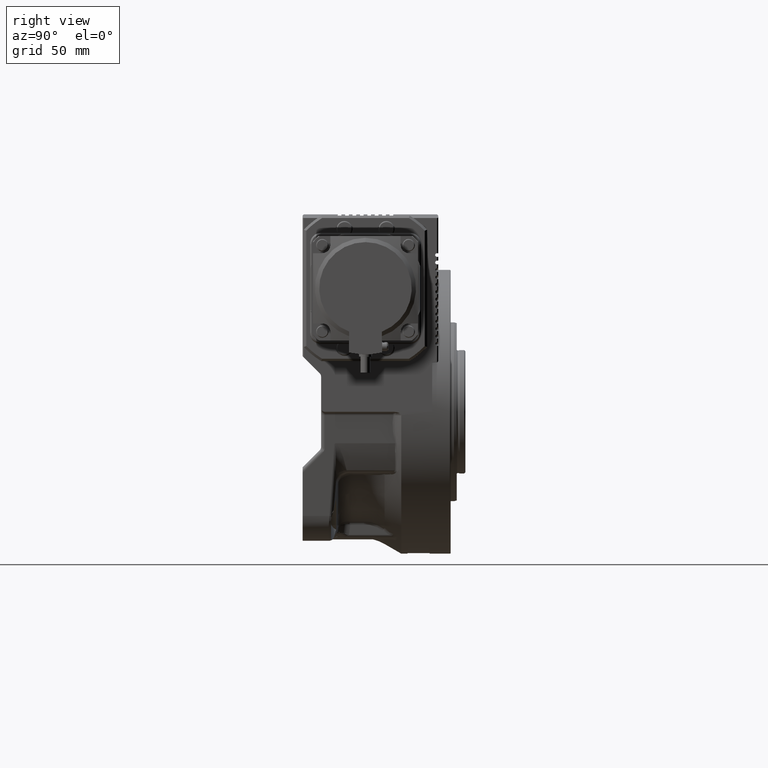
[diagram: clean part render]
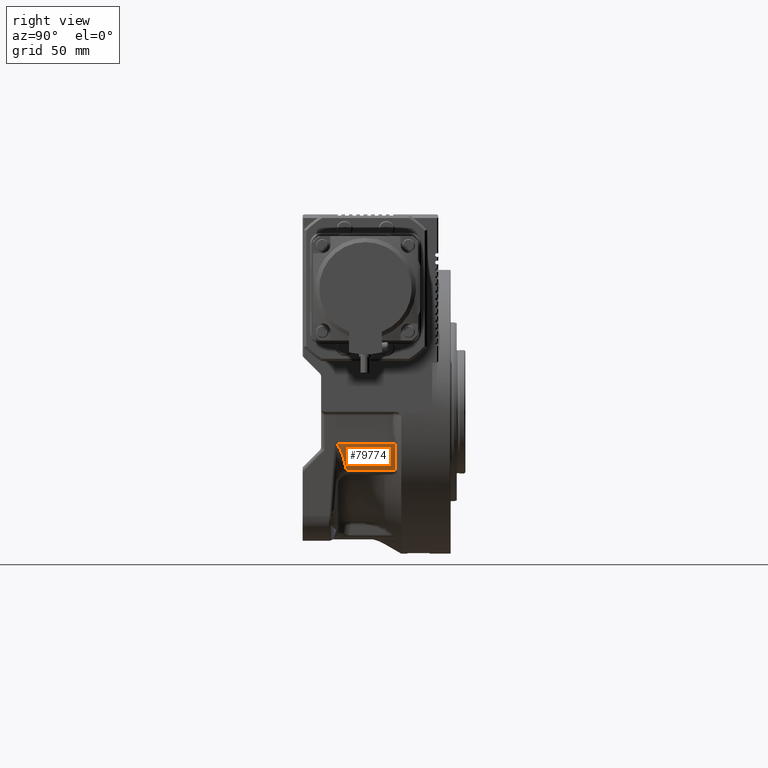
[diagram: same view with one face highlighted and labeled with its STEP entity id]
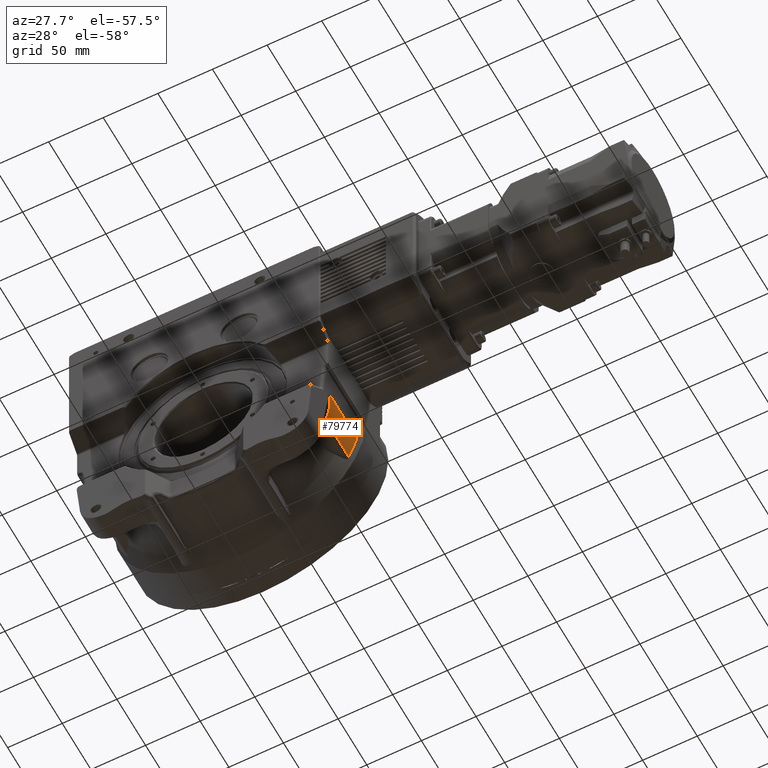
[diagram: same view with one face highlighted and labeled with its STEP entity id]
A machine part, right view. The second image highlights one B-rep face of the part: STEP entity #79774.
A second angle (auxiliary view) of the same face is appended — the face is thin or edge-on in the first view.
In plain terms, the highlighted cylindrical surface (partial cylindrical patch) has radius 112.5 mm, axis along (0, 1, 0).
Its self-contained STEP definition (entity closure, byte-faithful):
#1945 = EDGE_CURVE ( 'NONE', #17000, #83383, #28299, .T. ) ;
#3033 = DIRECTION ( 'NONE',  ( 0.000000000000000000, -1.000000000000000000, 0.000000000000000000 ) ) ;
#3091 = CARTESIAN_POINT ( 'NONE',  ( 104.4977235029449361, -16.60988829597916805, -41.67123859470657976 ) ) ;
#5011 = CARTESIAN_POINT ( 'NONE',  ( 107.1567973905098512, -18.91093388580126700, -34.26239711691780343 ) ) ;
#5644 = DIRECTION ( 'NONE',  ( 0.000000000000000000, 0.000000000000000000, 1.000000000000000000 ) ) ;
#5877 = CARTESIAN_POINT ( 'NONE',  ( 109.4362748832364360, -23.09544669765272928, -26.07909268788418800 ) ) ;
#6307 = CARTESIAN_POINT ( 'NONE',  ( 108.3878182738907583, -20.62180997419967809, -30.13901847835168368 ) ) ;
#6752 = CARTESIAN_POINT ( 'NONE',  ( 108.2649143256294764, -20.41834824866721121, -30.57708903328443384 ) ) ;
#8786 = CARTESIAN_POINT ( 'NONE',  ( 106.5510797739234192, -18.26597749026581141, -36.09873160581388873 ) ) ;
#9649 = CARTESIAN_POINT ( 'NONE',  ( 102.0305623827938035, -15.34725139515560066, -47.39213373388919592 ) ) ;
#10582 = CARTESIAN_POINT ( 'NONE',  ( 109.5702856073580023, 23.81547063674814879, -25.50691106194614832 ) ) ;
#11234 = CARTESIAN_POINT ( 'NONE',  ( 109.5702856073580023, 23.81547063674814879, -25.50691106194614832 ) ) ;
#12125 = VERTEX_POINT ( 'NONE', #50267 ) ;
#13266 = CARTESIAN_POINT ( 'NONE',  ( 109.5702856073580023, -23.71459515956074782, -25.50691106194614832 ) ) ;
#13713 = CARTESIAN_POINT ( 'NONE',  ( 104.6405721432247873, -16.70405340118021087, -41.31122365284012687 ) ) ;
#14690 = EDGE_CURVE ( 'NONE', #41082, #12125, #66148, .T. ) ;
#15250 = CARTESIAN_POINT ( 'NONE',  ( 102.0305623827938035, 23.86602540366310166, -47.39213373388919592 ) ) ;
#15733 = CARTESIAN_POINT ( 'NONE',  ( 106.2192753682689670, -17.93723295533785134, -37.07631272623287089 ) ) ;
#17000 = VERTEX_POINT ( 'NONE', #81486 ) ;
#18483 = CARTESIAN_POINT ( 'NONE',  ( 108.9885329557150584, -21.81241875967998567, -27.88816404084355227 ) ) ;
#18910 = CARTESIAN_POINT ( 'NONE',  ( 108.2947808898623521, -20.46701318364487321, -30.47117280089359070 ) ) ;
#19364 = CARTESIAN_POINT ( 'NONE',  ( 106.6733890811003675, -18.38910520445546126, -35.73606471912152216 ) ) ;
#19789 = CARTESIAN_POINT ( 'NONE',  ( 108.2789549894252588, -20.44116655546534744, -30.52733848836504293 ) ) ;
#22726 = DIRECTION ( 'NONE',  ( 0.000000000000000000, 1.000000000000000000, 0.000000000000000000 ) ) ;
#23824 = CARTESIAN_POINT ( 'NONE',  ( 109.5709518947512038, 23.86602540377385040, -25.50404871541195106 ) ) ;
#23902 = DIRECTION ( 'NONE',  ( 0.000000000000000000, 1.000000000000000000, 0.000000000000000000 ) ) ;
#24355 = DIRECTION ( 'NONE',  ( 0.000000000000000000, 1.000000000000000000, 0.000000000000000000 ) ) ;
#25451 = CARTESIAN_POINT ( 'NONE',  ( 108.9899509360714660, -21.81575216659588179, -27.88262208252710295 ) ) ;
#25889 = CARTESIAN_POINT ( 'NONE',  ( 107.3018372766671149, -19.08124656930946372, -33.80510572399261804 ) ) ;
#26090 = CARTESIAN_POINT ( 'NONE',  ( 0.000000000000000000, -500000.0000000000000, 0.000000000000000000 ) ) ;
#26649 = VECTOR ( 'NONE', #23902, 1000.000000000000000 ) ;
#27538 = CIRCLE ( 'NONE', #65035, 112.5000000000000000 ) ;
#28299 = B_SPLINE_CURVE_WITH_KNOTS ( 'NONE', 3,
 ( #23824, #29915, #84293, #11234 ),
 .UNSPECIFIED., .F., .F.,
 ( 4, 4 ),
 ( 0.000000000000000000, 5.064011685999940247E-05 ),
 .UNSPECIFIED. ) ;
#28850 = CARTESIAN_POINT ( 'NONE',  ( 102.0305623827938035, -500000.0000000000000, -47.39213373388919592 ) ) ;
#29609 = CARTESIAN_POINT ( 'NONE',  ( 105.3715326725593684, -17.22767632664576354, -39.41243922429048752 ) ) ;
#29915 = CARTESIAN_POINT ( 'NONE',  ( 109.5705038323090008, 23.84926147138694574, -25.50597368931894948 ) ) ;
#30042 = CARTESIAN_POINT ( 'NONE',  ( 104.5458515970527884, -16.64131907265173638, -41.55034839809929537 ) ) ;
#30813 = EDGE_CURVE ( 'NONE', #34562, #17000, #27538, .T. ) ;
#31536 = CARTESIAN_POINT ( 'NONE',  ( 108.1428908010591670, -20.22063146769899689, -31.00903881356076042 ) ) ;
#31981 = CARTESIAN_POINT ( 'NONE',  ( 109.2918651564017836, -22.61945609012627756, -26.67545771998155502 ) ) ;
#32399 = CARTESIAN_POINT ( 'NONE',  ( 108.7821835056172972, -21.35143764871828154, -28.68627797755178932 ) ) ;
#33176 = ORIENTED_EDGE ( 'NONE', *, *, #14690, .T. ) ;
#33279 = CARTESIAN_POINT ( 'NONE',  ( 108.5068273787733517, -20.82745108509698184, -29.70907562770933552 ) ) ;
#34562 = VERTEX_POINT ( 'NONE', #15250 ) ;
#35308 = CARTESIAN_POINT ( 'NONE',  ( 105.1049817836745746, -17.02513380447119928, -40.12039433580174119 ) ) ;
#35779 = EDGE_CURVE ( 'NONE', #41082, #83383, #44341, .T. ) ;
#36945 = CARTESIAN_POINT ( 'NONE',  ( 0.000000000000000000, 23.86602540377679915, 0.000000000000000000 ) ) ;
#38059 = CARTESIAN_POINT ( 'NONE',  ( 107.4600623111524840, -19.27788631034821520, -33.29542421137050923 ) ) ;
#38711 = FACE_OUTER_BOUND ( 'NONE', #81747, .T. ) ;
#39790 = CARTESIAN_POINT ( 'NONE',  ( 107.5080089094986420, -19.33806550451268436, -33.14038853742594171 ) ) ;
#41082 = VERTEX_POINT ( 'NONE', #57016 ) ;
#41831 = CARTESIAN_POINT ( 'NONE',  ( 106.5401991669159116, -18.25516264914857700, -36.13083000607822726 ) ) ;
#44341 = LINE ( 'NONE', #77860, #26649 ) ;
#45003 = CARTESIAN_POINT ( 'NONE',  ( 109.0179745958262174, -21.88223860735939397, -27.77288806436132518 ) ) ;
#45886 = CARTESIAN_POINT ( 'NONE',  ( 108.6016426017529852, -21.00260607943483038, -29.35961890615937264 ) ) ;
#47188 = CARTESIAN_POINT ( 'NONE',  ( 105.8910475035096113, -17.64423300041547193, -38.00443542667093766 ) ) ;
#49200 = CARTESIAN_POINT ( 'NONE',  ( 103.6904175801053611, -16.08991652100636571, -43.68902826426310781 ) ) ;
#50267 = CARTESIAN_POINT ( 'NONE',  ( 102.0305623827938035, -15.34725139515560066, -47.39213373388919592 ) ) ;
#51548 = CARTESIAN_POINT ( 'NONE',  ( 109.1507942663189112, -22.21762868989193507, -27.24644686292477758 ) ) ;
#52415 = CARTESIAN_POINT ( 'NONE',  ( 106.9294344382498139, -18.65886027426691740, -34.96292781666134886 ) ) ;
#52856 = CARTESIAN_POINT ( 'NONE',  ( 107.7037006858636090, -19.59115252738759594, -32.50036727448928531 ) ) ;
#54189 = AXIS2_PLACEMENT_3D ( 'NONE', #26090, #24355, #5644 ) ;
#56161 = CARTESIAN_POINT ( 'NONE',  ( 106.6023093728623934, -18.31719301916038845, -35.94724988531835663 ) ) ;
#57016 = CARTESIAN_POINT ( 'NONE',  ( 109.5702856073580023, -23.71459515956074782, -25.50691106194614832 ) ) ;
#58106 = CARTESIAN_POINT ( 'NONE',  ( 107.5742515100540828, -19.42236799624693333, -32.92505446819967574 ) ) ;
#58527 = CARTESIAN_POINT ( 'NONE',  ( 108.0147681026848119, -20.02650367635775552, -31.45301918137260344 ) ) ;
#58948 = CARTESIAN_POINT ( 'NONE',  ( 107.8095611924506301, -19.73613277884092554, -32.14664292684989277 ) ) ;
#59383 = CARTESIAN_POINT ( 'NONE',  ( 108.2721428881335584, -20.43008509772732140, -30.55148350720164885 ) ) ;
#59824 = CARTESIAN_POINT ( 'NONE',  ( 109.1048331313694177, -22.09620827532954834, -27.43019758860210189 ) ) ;
#61857 = CARTESIAN_POINT ( 'NONE',  ( 104.7817589673168186, -16.79887187085325806, -40.95299715611200497 ) ) ;
#62705 = CARTESIAN_POINT ( 'NONE',  ( 102.8829132843336112, -15.67923307902674424, -45.55710680051835482 ) ) ;
#63916 = ORIENTED_EDGE ( 'NONE', *, *, #30813, .T. ) ;
#64608 = CARTESIAN_POINT ( 'NONE',  ( 107.4450829056863626, -19.25921587111526634, -33.34373065064320940 ) ) ;
#65035 = AXIS2_PLACEMENT_3D ( 'NONE', #36945, #3033, #83512 ) ;
#65048 = CARTESIAN_POINT ( 'NONE',  ( 108.3261576204707382, -20.51866601465343720, -30.35953248598913845 ) ) ;
#65157 = ORIENTED_EDGE ( 'NONE', *, *, #67672, .T. ) ;
#65478 = CARTESIAN_POINT ( 'NONE',  ( 109.0475488785408658, -21.95370315775476300, -27.65664838615213839 ) ) ;
#65896 = CARTESIAN_POINT ( 'NONE',  ( 109.0029523339815114, -21.84645333404860423, -27.83176090501160971 ) ) ;
#66148 = B_SPLINE_CURVE_WITH_KNOTS ( 'NONE', 3,
 ( #13266, #79406, #5877, #31981, #85051, #51548, #59824, #65478, #45003, #65896, #84641, #85920, #25451, #18483, #72417, #32399, #45886, #33279, #6307, #65048, #18910, #19789, #59383, #79825, #6752, #31536, #58527, #58948, #52856, #58106, #39790, #72846, #38059, #85477, #64608, #25889, #5011, #52415, #78977, #19364, #56161, #68363, #8786, #41831, #15733, #47188, #29609, #35308, #61857, #13713, #30042, #3091, #49200, #62705, #9649 ),
 .UNSPECIFIED., .F., .F.,
 ( 4, 2, 2, 1, 1, 1, 1, 1, 2, 2, 2, 1, 1, 1, 1, 1, 2, 2, 2, 1, 1, 1, 1, 2, 2, 2, 1, 1, 1, 2, 2, 2, 1, 1, 2, 2, 4 ),
 ( 0.000000000000000000, 0.06249999999996035116, 0.09374999999994051980, 0.1093749999999303613, 0.1171874999999254208, 0.1210937499999227285, 0.1230468749999213685, 0.1240234374999208411, 0.1245117187499207023, 0.1249999999999205774, 0.1874999999999146238, 0.2187499999999118483, 0.2343749999999100997, 0.2421874999999092393, 0.2460937499999086842, 0.2480468749999084899, 0.2490234374999083511, 0.2499999999999082401, 0.3124999999999142908, 0.3437499999999175659, 0.3593749999999194533, 0.3671874999999207301, 0.3710937499999213962, 0.3730468749999218958, 0.3749999999999223399, 0.4374999999999301670, 0.4687499999999347744, 0.4843749999999366618, 0.4921874999999378275, 0.4960937499999381051, 0.4999999999999382716, 0.6249999999999518163, 0.6874999999999584777, 0.7187499999999614753, 0.7343749999999626965, 0.7499999999999638067, 1.000000000000000000 ),
 .UNSPECIFIED. ) ;
#67672 = EDGE_CURVE ( 'NONE', #12125, #34562, #68415, .T. ) ;
#68363 = CARTESIAN_POINT ( 'NONE',  ( 106.5716040786370655, -18.28645309115751871, -36.03809413167991238 ) ) ;
#68415 = LINE ( 'NONE', #28850, #82442 ) ;
#69280 = ORIENTED_EDGE ( 'NONE', *, *, #1945, .T. ) ;
#69401 = ORIENTED_EDGE ( 'NONE', *, *, #35779, .F. ) ;
#72417 = CARTESIAN_POINT ( 'NONE',  ( 108.8904368641817655, -21.58202080198634221, -28.27148563415878257 ) ) ;
#72846 = CARTESIAN_POINT ( 'NONE',  ( 107.4745041159611390, -19.29593670203178846, -33.24880170266104784 ) ) ;
#77860 = CARTESIAN_POINT ( 'NONE',  ( 109.5702856073580023, -500000.0000000000000, -25.50691106194614832 ) ) ;
#78977 = CARTESIAN_POINT ( 'NONE',  ( 106.8133018155191110, -18.53367232207385129, -35.31684118411020279 ) ) ;
#79177 = CYLINDRICAL_SURFACE ( 'NONE', #54189, 112.5000000000000000 ) ;
#79406 = CARTESIAN_POINT ( 'NONE',  ( 109.5123749509190105, -23.40760520866070138, -25.75567843131920043 ) ) ;
#79774 = ADVANCED_FACE ( 'NONE', ( #38711 ), #79177, .T. ) ;
#79825 = CARTESIAN_POINT ( 'NONE',  ( 108.2675949043707249, -20.42269649675348830, -30.56759662947514400 ) ) ;
#81486 = CARTESIAN_POINT ( 'NONE',  ( 109.5709518947512038, 23.86602540377385040, -25.50404871541195106 ) ) ;
#81747 = EDGE_LOOP ( 'NONE', ( #69401, #33176, #65157, #63916, #69280 ) ) ;
#82442 = VECTOR ( 'NONE', #22726, 1000.000000000000000 ) ;
#83383 = VERTEX_POINT ( 'NONE', #10582 ) ;
#83512 = DIRECTION ( 'NONE',  ( 4.440892098500625373E-15, 0.000000000000000000, 1.000000000000000000 ) ) ;
#84293 = CARTESIAN_POINT ( 'NONE',  ( 109.5702856073580023, 23.83235067579049726, -25.50691106194580016 ) ) ;
#84641 = CARTESIAN_POINT ( 'NONE',  ( 108.9953821592753798, -21.82854744805905156, -27.86138550341505393 ) ) ;
#85051 = CARTESIAN_POINT ( 'NONE',  ( 109.2386710640884360, -22.45950041414820220, -26.89278279839643560 ) ) ;
#85477 = CARTESIAN_POINT ( 'NONE',  ( 107.4504160360418865, -19.26585378460310238, -33.32654135990408406 ) ) ;
#85920 = CARTESIAN_POINT ( 'NONE',  ( 108.9921251180119413, -21.82087065775555601, -27.87412207593142810 ) ) ;